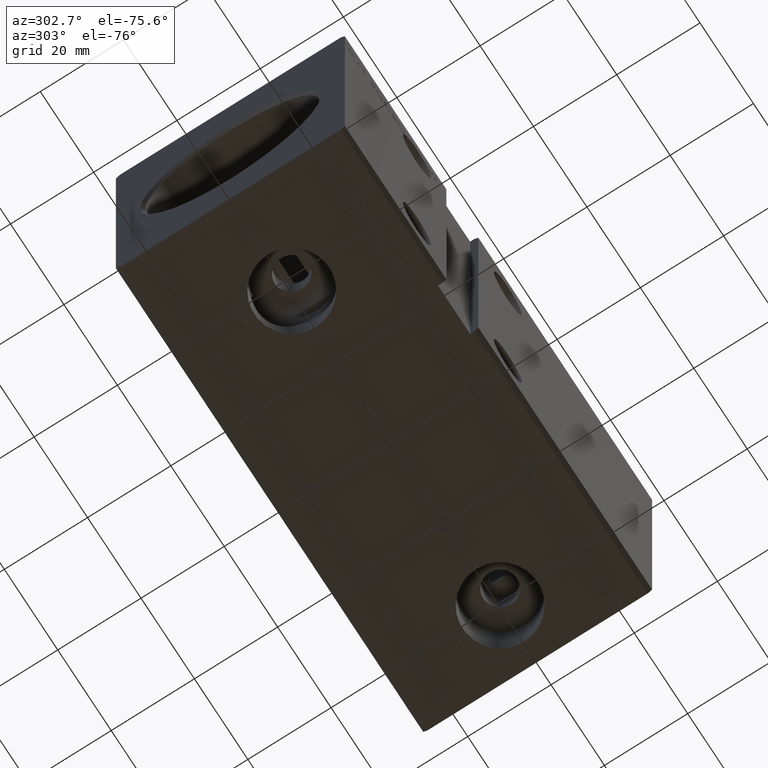
[diagram: clean part render]
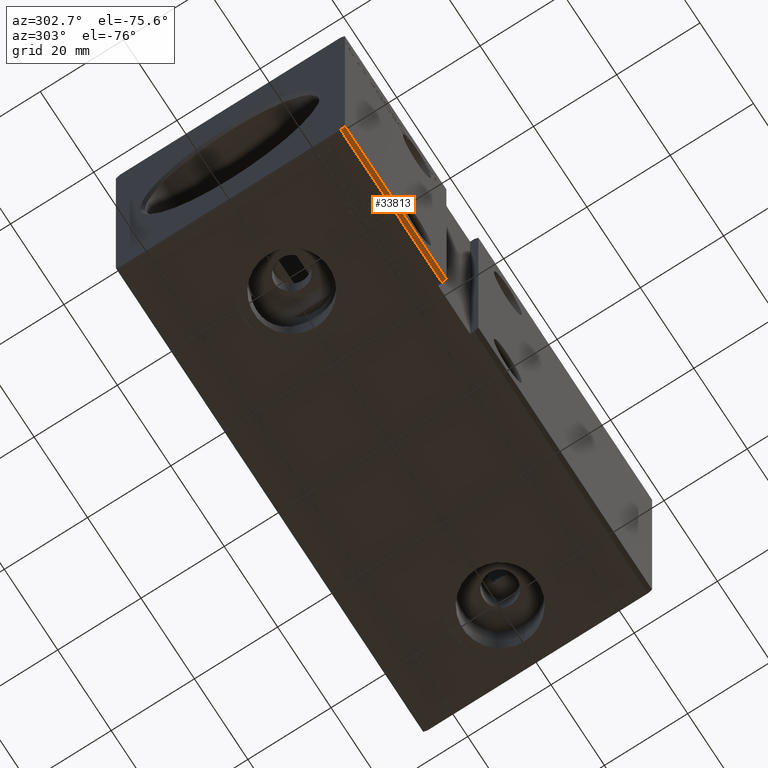
[diagram: same view with one face highlighted and labeled with its STEP entity id]
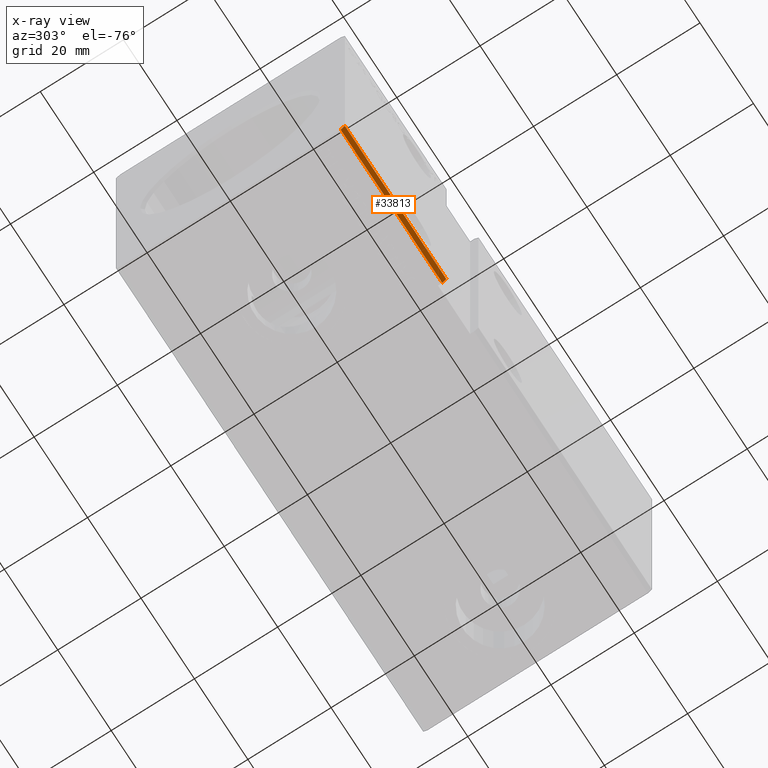
[diagram: x-ray of the same camera — body ghosted, the highlighted face saturated]
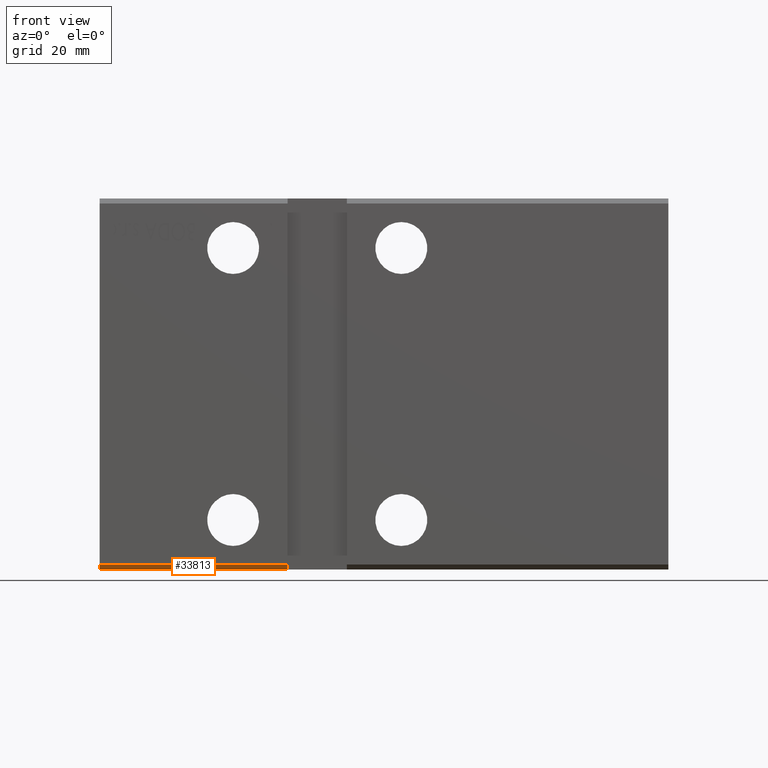
[diagram: same view with one face highlighted and labeled with its STEP entity id]
A machine part, auxiliary view. The second image highlights one B-rep face of the part: STEP entity #33813.
The next image is the same camera in x-ray: the body ghosted, the highlighted face saturated — about 0% of this face is hidden behind the body in this view.
A second angle (front view) of the same face is appended — the face is thin or edge-on in the first view.
In plain terms, the highlighted planar face has unit normal (-0, 0.7071, 0.7071).
Its self-contained STEP definition (entity closure, byte-faithful):
#1371 = ORIENTED_EDGE ( 'NONE', *, *, #36679, .T. ) ;
#3198 = VECTOR ( 'NONE', #22655, 1000.000000000000000 ) ;
#3379 = FACE_OUTER_BOUND ( 'NONE', #30993, .T. ) ;
#3409 = CARTESIAN_POINT ( 'NONE',  ( 0.000000000000000000, -26.50000000000000355, -37.49999999999999289 ) ) ;
#3689 = LINE ( 'NONE', #27978, #7192 ) ;
#4071 = ORIENTED_EDGE ( 'NONE', *, *, #13505, .F. ) ;
#4177 = CARTESIAN_POINT ( 'NONE',  ( 37.99999999999999289, -27.50000000000000355, -36.49999999999998579 ) ) ;
#4674 = CARTESIAN_POINT ( 'NONE',  ( 0.000000000000000000, -27.50000000000000355, -36.49999999999998579 ) ) ;
#6595 = VERTEX_POINT ( 'NONE', #3409 ) ;
#7192 = VECTOR ( 'NONE', #30760, 1000.000000000000000 ) ;
#8816 = DIRECTION ( 'NONE',  ( -1.000000000000000000, -0.000000000000000000, -0.000000000000000000 ) ) ;
#9398 = VERTEX_POINT ( 'NONE', #30927 ) ;
#11746 = EDGE_CURVE ( 'NONE', #18266, #9398, #17177, .T. ) ;
#13505 = EDGE_CURVE ( 'NONE', #36756, #6595, #3689, .T. ) ;
#16797 = DIRECTION ( 'NONE',  ( 0.000000000000000000, 0.7071067811865451302, -0.7071067811865500152 ) ) ;
#17177 = LINE ( 'NONE', #20564, #18707 ) ;
#18266 = VERTEX_POINT ( 'NONE', #4177 ) ;
#18707 = VECTOR ( 'NONE', #8816, 1000.000000000000000 ) ;
#19099 = DIRECTION ( 'NONE',  ( -0.000000000000000000, 0.7071067811865500152, 0.7071067811865450192 ) ) ;
#20564 = CARTESIAN_POINT ( 'NONE',  ( 115.0000000000000000, -27.50000000000000355, -36.49999999999998579 ) ) ;
#22102 = PLANE ( 'NONE',  #36346 ) ;
#22655 = DIRECTION ( 'NONE',  ( -6.542051911182419742E-17, -0.7071067811865450192, 0.7071067811865500152 ) ) ;
#27978 = CARTESIAN_POINT ( 'NONE',  ( 115.0000000000000000, -26.50000000000000355, -37.49999999999999289 ) ) ;
#29331 = VECTOR ( 'NONE', #16797, 1000.000000000000114 ) ;
#30005 = CARTESIAN_POINT ( 'NONE',  ( 38.00000000000000000, -26.50000000000000711, -37.49999999999999289 ) ) ;
#30760 = DIRECTION ( 'NONE',  ( -1.000000000000000000, -0.000000000000000000, -0.000000000000000000 ) ) ;
#30927 = CARTESIAN_POINT ( 'NONE',  ( 0.000000000000000000, -27.50000000000000355, -36.49999999999998579 ) ) ;
#30993 = EDGE_LOOP ( 'NONE', ( #4071, #1371, #36126, #35789 ) ) ;
#31970 = LINE ( 'NONE', #4674, #29331 ) ;
#33813 = ADVANCED_FACE ( 'NONE', ( #3379 ), #22102, .F. ) ;
#34051 = DIRECTION ( 'NONE',  ( 0.000000000000000000, -0.7071067811865450192, 0.7071067811865500152 ) ) ;
#35789 = ORIENTED_EDGE ( 'NONE', *, *, #36293, .T. ) ;
#36126 = ORIENTED_EDGE ( 'NONE', *, *, #11746, .T. ) ;
#36293 = EDGE_CURVE ( 'NONE', #9398, #6595, #31970, .T. ) ;
#36346 = AXIS2_PLACEMENT_3D ( 'NONE', #37657, #19099, #34051 ) ;
#36679 = EDGE_CURVE ( 'NONE', #36756, #18266, #38020, .T. ) ;
#36756 = VERTEX_POINT ( 'NONE', #30005 ) ;
#37657 = CARTESIAN_POINT ( 'NONE',  ( 115.0000000000000000, -27.50000000000000355, -36.49999999999998579 ) ) ;
#38020 = LINE ( 'NONE', #38218, #3198 ) ;
#38218 = CARTESIAN_POINT ( 'NONE',  ( 37.99999999999999289, -27.50000000000000000, -36.49999999999999289 ) ) ;